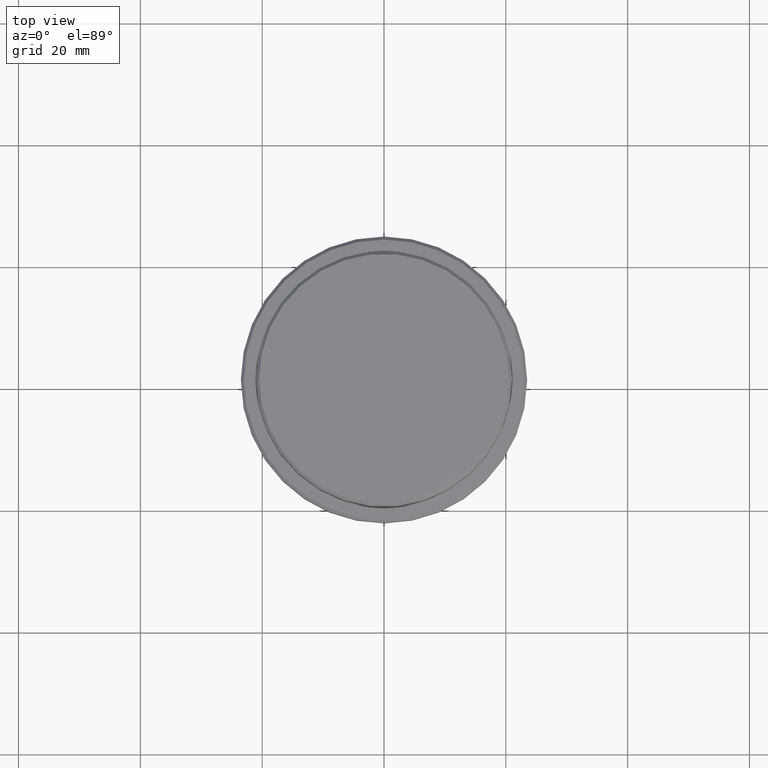
[diagram: clean part render]
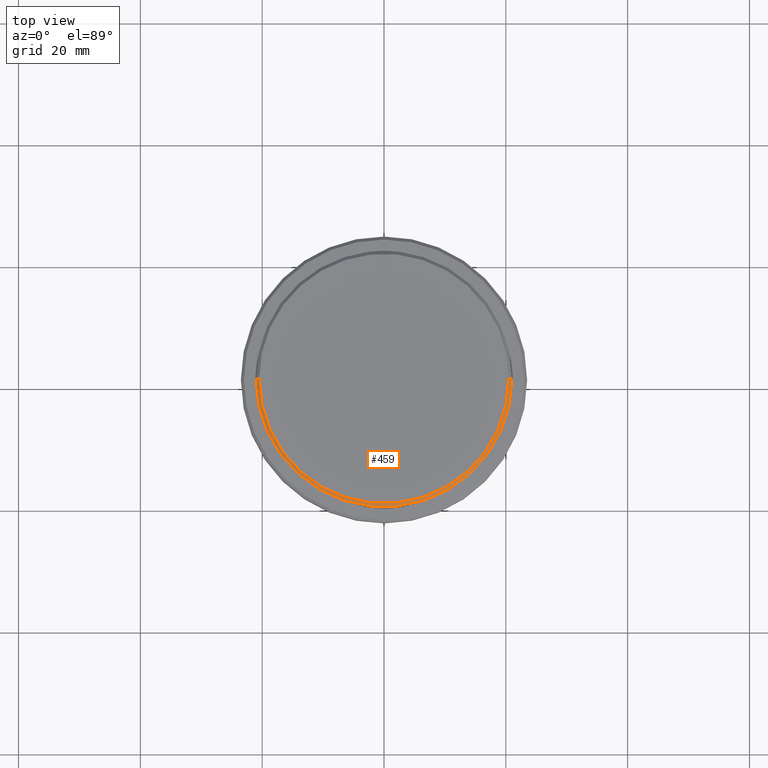
[diagram: same view with one face highlighted and labeled with its STEP entity id]
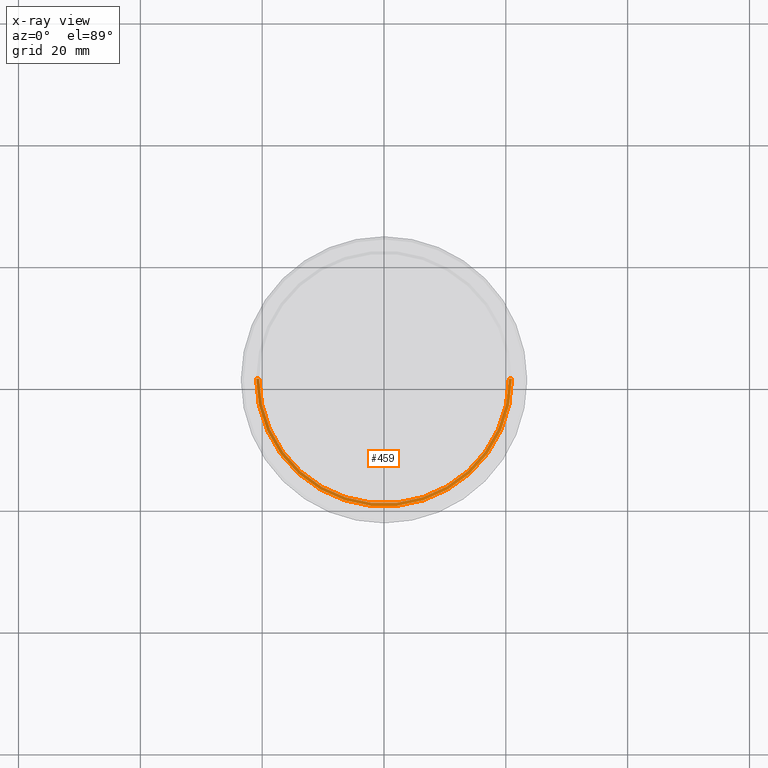
[diagram: x-ray of the same camera — body ghosted, the highlighted face saturated]
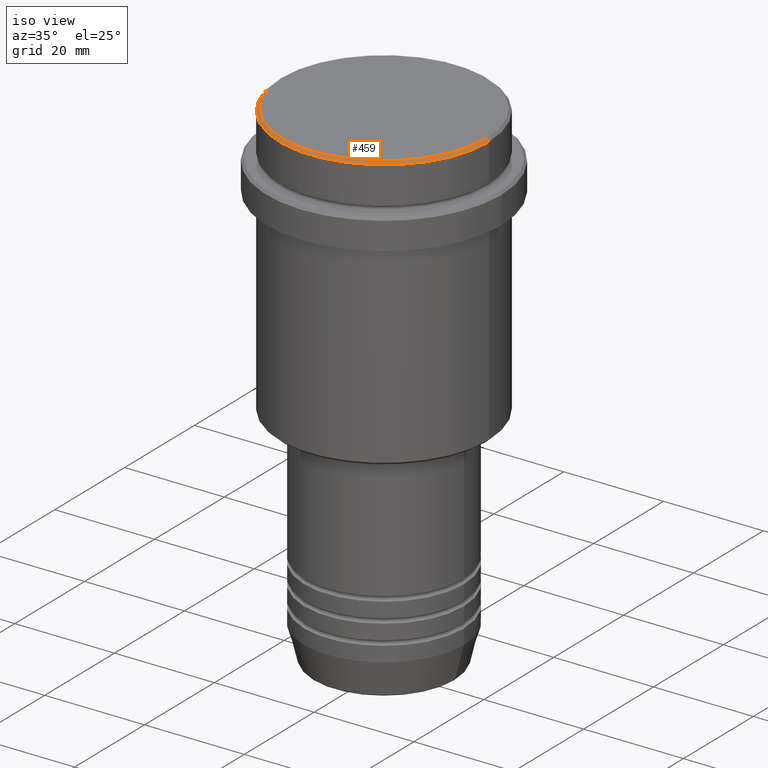
[diagram: same view with one face highlighted and labeled with its STEP entity id]
A machine part, top view. The second image highlights one B-rep face of the part: STEP entity #459.
The next image is the same camera in x-ray: the body ghosted, the highlighted face saturated — about 0% of this face is hidden behind the body in this view.
A second angle (iso view) of the same face is appended — the face is thin or edge-on in the first view.
In plain terms, the highlighted conical surface has half-angle 45 deg.
Its self-contained STEP definition (entity closure, byte-faithful):
#34 = ORIENTED_EDGE ( 'NONE', *, *, #357, .F. ) ;
#44 = CARTESIAN_POINT ( 'NONE',  ( -20.50000000000000355, 0.000000000000000000, 0.000000000000000000 ) ) ;
#155 = AXIS2_PLACEMENT_3D ( 'NONE', #818, #1124, #361 ) ;
#221 = DIRECTION ( 'NONE',  ( 0.7071067811865474617, 8.659560562354932858E-17, -0.7071067811865474617 ) ) ;
#263 = VERTEX_POINT ( 'NONE', #773 ) ;
#272 = CONICAL_SURFACE ( 'NONE', #155, 20.50000000000000355, 0.7853981633974482790 ) ;
#298 = VECTOR ( 'NONE', #221, 1000.000000000000114 ) ;
#334 = CARTESIAN_POINT ( 'NONE',  ( 20.50000000000000355, 2.510525938252074481E-15, 0.000000000000000000 ) ) ;
#342 = EDGE_CURVE ( 'NONE', #490, #1164, #1344, .T. ) ;
#357 = EDGE_CURVE ( 'NONE', #1164, #263, #876, .T. ) ;
#361 = DIRECTION ( 'NONE',  ( -1.000000000000000000, 0.000000000000000000, 0.000000000000000000 ) ) ;
#443 = DIRECTION ( 'NONE',  ( 1.000000000000000000, 0.000000000000000000, 0.000000000000000000 ) ) ;
#444 = CARTESIAN_POINT ( 'NONE',  ( 0.000000000000000000, 0.000000000000000000, -0.4999999999999970024 ) ) ;
#459 = ADVANCED_FACE ( 'NONE', ( #574 ), #272, .T. ) ;
#490 = VERTEX_POINT ( 'NONE', #44 ) ;
#574 = FACE_OUTER_BOUND ( 'NONE', #1253, .T. ) ;
#595 = VERTEX_POINT ( 'NONE', #728 ) ;
#622 = CARTESIAN_POINT ( 'NONE',  ( 20.50000000000000355, 2.541142108230758269E-15, 0.000000000000000000 ) ) ;
#697 = ORIENTED_EDGE ( 'NONE', *, *, #907, .F. ) ;
#714 = CARTESIAN_POINT ( 'NONE',  ( -20.50000000000000355, 0.000000000000000000, 0.000000000000000000 ) ) ;
#724 = EDGE_CURVE ( 'NONE', #490, #595, #1151, .T. ) ;
#728 = CARTESIAN_POINT ( 'NONE',  ( -21.00000000000000000, 2.571758278209441661E-15, -0.4999999999999970024 ) ) ;
#773 = CARTESIAN_POINT ( 'NONE',  ( 21.00000000000000000, 0.000000000000000000, -0.4999999999999970024 ) ) ;
#818 = CARTESIAN_POINT ( 'NONE',  ( 0.000000000000000000, 0.000000000000000000, 0.000000000000000000 ) ) ;
#851 = CIRCLE ( 'NONE', #1370, 21.00000000000000000 ) ;
#876 = LINE ( 'NONE', #334, #298 ) ;
#905 = DIRECTION ( 'NONE',  ( 0.000000000000000000, 0.000000000000000000, -1.000000000000000000 ) ) ;
#907 = EDGE_CURVE ( 'NONE', #263, #595, #851, .T. ) ;
#921 = ORIENTED_EDGE ( 'NONE', *, *, #342, .F. ) ;
#987 = CARTESIAN_POINT ( 'NONE',  ( 0.000000000000000000, 0.000000000000000000, 0.000000000000000000 ) ) ;
#1032 = VECTOR ( 'NONE', #1335, 1000.000000000000114 ) ;
#1110 = DIRECTION ( 'NONE',  ( 1.000000000000000000, 0.000000000000000000, 0.000000000000000000 ) ) ;
#1124 = DIRECTION ( 'NONE',  ( 0.000000000000000000, 0.000000000000000000, -1.000000000000000000 ) ) ;
#1151 = LINE ( 'NONE', #714, #1032 ) ;
#1164 = VERTEX_POINT ( 'NONE', #622 ) ;
#1253 = EDGE_LOOP ( 'NONE', ( #34, #921, #1292, #697 ) ) ;
#1292 = ORIENTED_EDGE ( 'NONE', *, *, #724, .T. ) ;
#1304 = AXIS2_PLACEMENT_3D ( 'NONE', #987, #1415, #443 ) ;
#1335 = DIRECTION ( 'NONE',  ( -0.7071067811865474617, 0.000000000000000000, -0.7071067811865474617 ) ) ;
#1344 = CIRCLE ( 'NONE', #1304, 20.50000000000000355 ) ;
#1370 = AXIS2_PLACEMENT_3D ( 'NONE', #444, #905, #1110 ) ;
#1415 = DIRECTION ( 'NONE',  ( -0.000000000000000000, -0.000000000000000000, 1.000000000000000000 ) ) ;